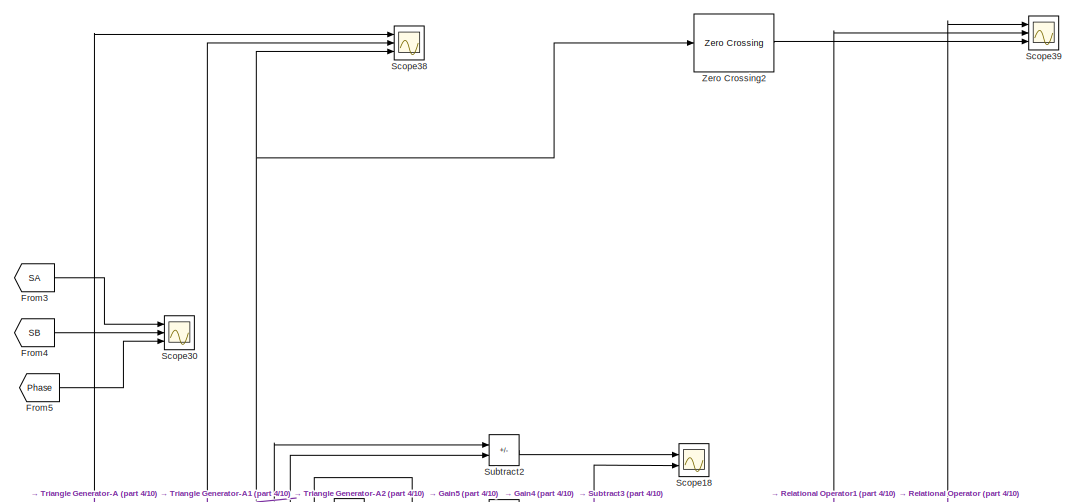
[diagram: root canvas - part 1/10, top center region]
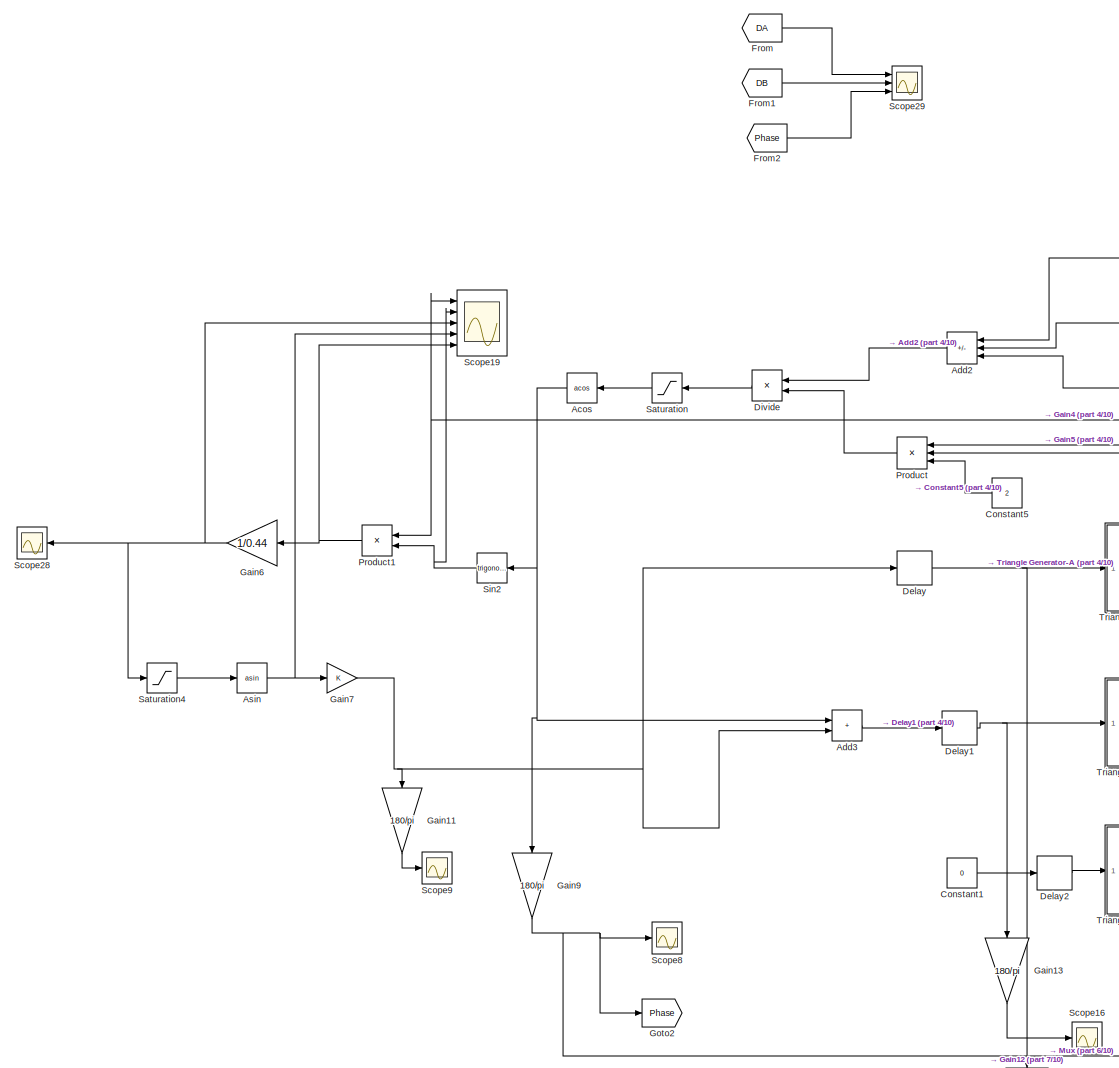
[diagram: root canvas - part 2/10, top left region]
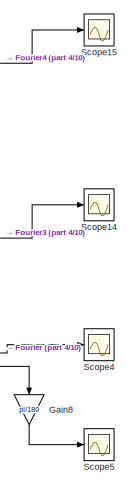
[diagram: root canvas - part 3/10, top right region]
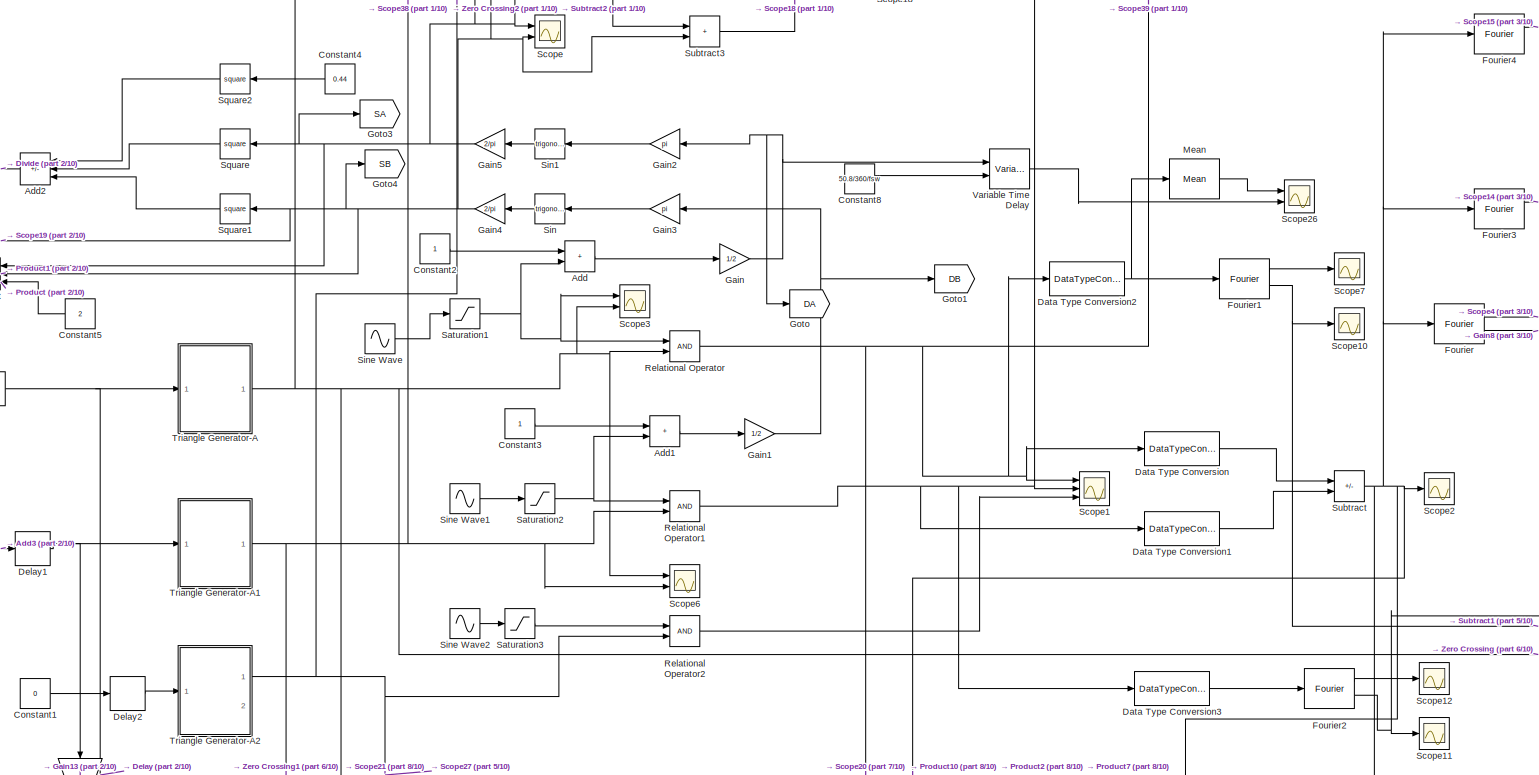
[diagram: root canvas - part 4/10, top center region]
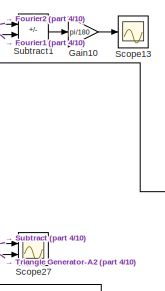
[diagram: root canvas - part 5/10, middle right region]
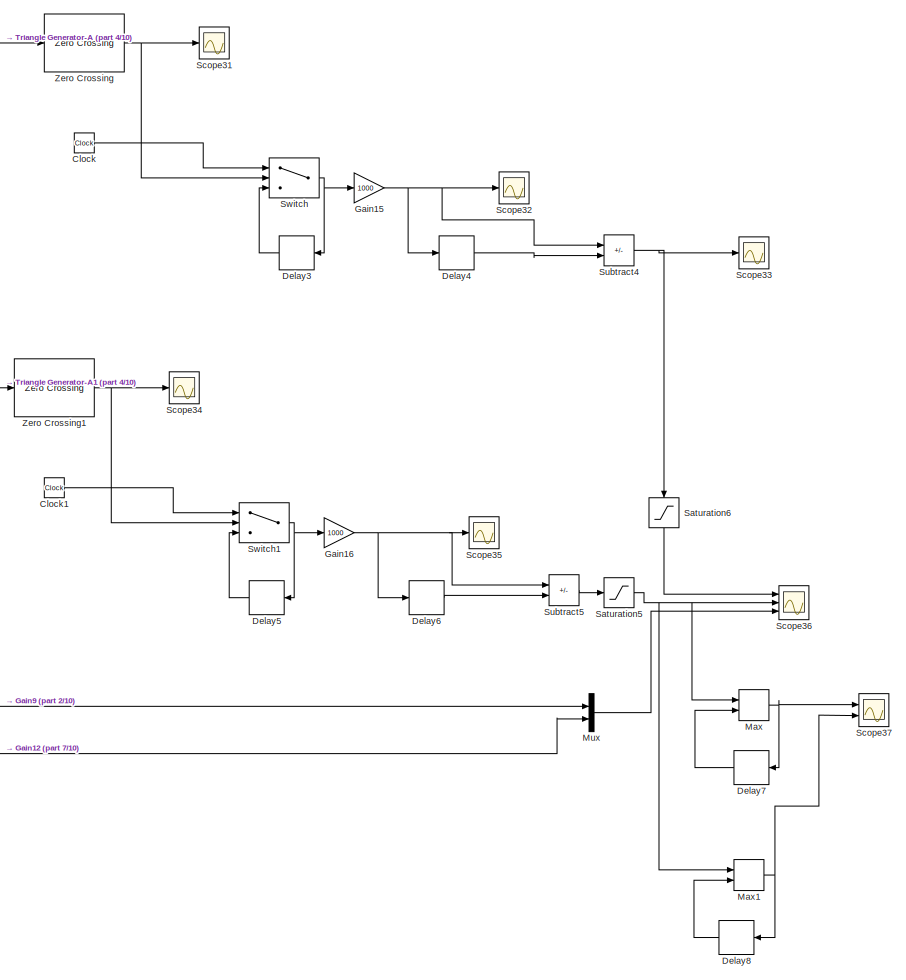
[diagram: root canvas - part 6/10, middle right region]
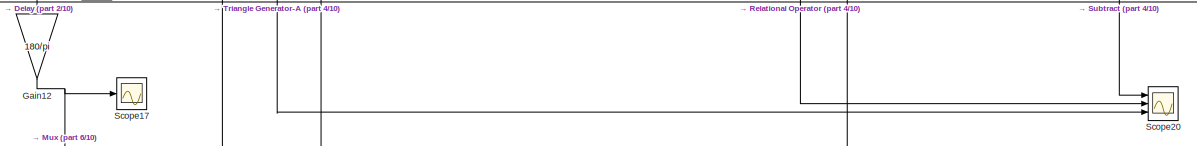
[diagram: root canvas - part 7/10, central region]
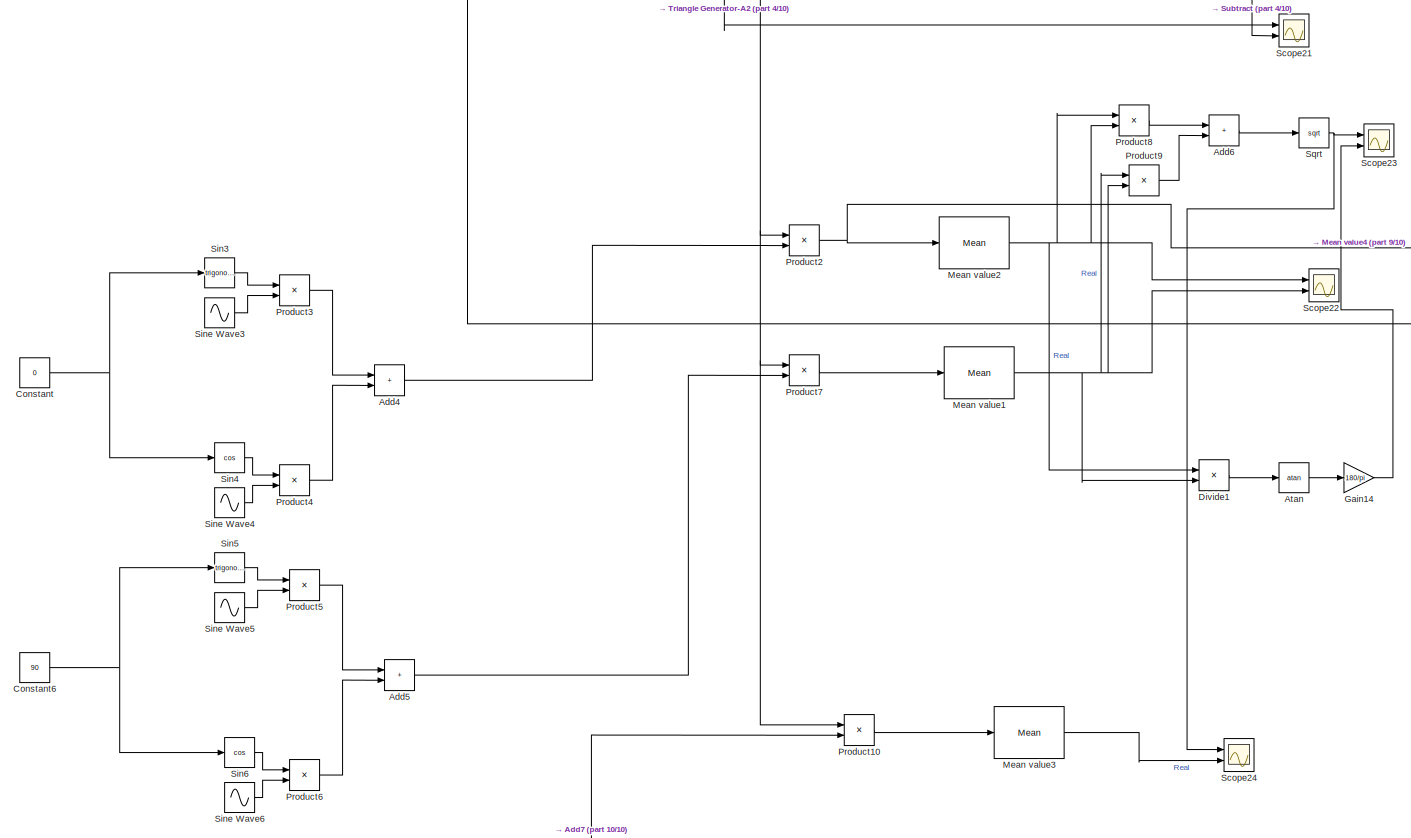
[diagram: root canvas - part 8/10, bottom center region]
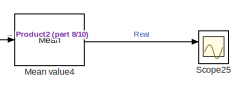
[diagram: root canvas - part 9/10, bottom right region]
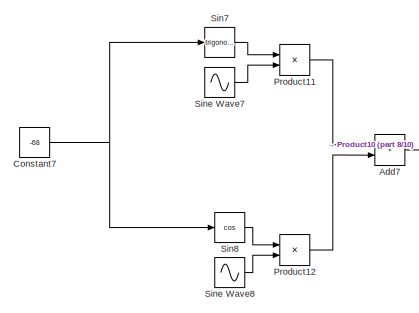
[diagram: root canvas - part 10/10, bottom left region]
MODEL slx_3d8811979608
KIND model
CONFIG AbsTol = auto
CONFIG EnableMultiTasking = off
CONFIG FixedStep = 1e-8
CONFIG InitFcn = fsw=10e3;\nma=0.8;\nffund=100;
CONFIG MaxStep = 1e-7
CONFIG MinStep = auto
CONFIG RelTol = 1e-6
CONFIG SampleTimeConstraint = Unconstrained
CONFIG SolverName = FixedStepAuto
CONFIG StartTime = 0.0
CONFIG StopTime = 0.01
BLOCK [Trigonometry] Acos
  NameLocation = top
  Operator = acos
  Ports = [1, 1]
BLOCK [Sum] Add
  IconShape = rectangular
  Ports = [2, 1]
BLOCK [Sum] Add1
  IconShape = rectangular
  Ports = [2, 1]
BLOCK [Sum] Add2
  IconShape = rectangular
  Inputs = -++
  NameLocation = top
  Ports = [3, 1]
BLOCK [Sum] Add3
  IconShape = rectangular
  Ports = [2, 1]
BLOCK [Sum] Add4
  IconShape = rectangular
  Ports = [2, 1]
BLOCK [Sum] Add5
  IconShape = rectangular
  Ports = [2, 1]
BLOCK [Sum] Add6
  IconShape = rectangular
  Ports = [2, 1]
BLOCK [Sum] Add7
  IconShape = rectangular
  Ports = [2, 1]
BLOCK [Trigonometry] Asin
  Operator = asin
  Ports = [1, 1]
BLOCK [Trigonometry] Atan
  Operator = atan
  Ports = [1, 1]
BLOCK [Clock] Clock
BLOCK [Clock] Clock1
BLOCK [Constant] Constant
  Value = 0
BLOCK [Constant] Constant1
  Value = 0
BLOCK [Constant] Constant2
BLOCK [Constant] Constant3
BLOCK [Constant] Constant4
  NameLocation = top
  Value = 0.44
BLOCK [Constant] Constant5
  NameLocation = top
  Value = 2
BLOCK [Constant] Constant6
  Value = 90
BLOCK [Constant] Constant7
  Value = -68
BLOCK [Constant] Constant8
  Value = 50.8/360/fsw
BLOCK [DataTypeConversion] Data Type Conversion
  RndMeth = Floor
  SaturateOnIntegerOverflow = off
BLOCK [DataTypeConversion] Data Type Conversion1
  RndMeth = Floor
  SaturateOnIntegerOverflow = off
BLOCK [DataTypeConversion] Data Type Conversion2
  RndMeth = Floor
  SaturateOnIntegerOverflow = off
BLOCK [DataTypeConversion] Data Type Conversion3
  RndMeth = Floor
  SaturateOnIntegerOverflow = off
BLOCK [Delay] Delay
  DelayLength = 1
  InputPortMap = u0
  Ports = [1, 1]
BLOCK [Delay] Delay1
  DelayLength = 1
  InputPortMap = u0
  Ports = [1, 1]
BLOCK [Delay] Delay2
  DelayLength = 1
  InputPortMap = u0
  Ports = [1, 1]
BLOCK [Delay] Delay3
  DelayLength = 1
  InputPortMap = u0
  NameLocation = top
  Ports = [1, 1]
BLOCK [Delay] Delay4
  DelayLength = 1
  InputPortMap = u0
  Ports = [1, 1]
BLOCK [Delay] Delay5
  DelayLength = 1
  InputPortMap = u0
  NameLocation = top
  Ports = [1, 1]
BLOCK [Delay] Delay6
  DelayLength = 1
  InputPortMap = u0
  Ports = [1, 1]
BLOCK [Delay] Delay7
  DelayLength = 1
  InputPortMap = u0
  NameLocation = top
  Ports = [1, 1]
BLOCK [Delay] Delay8
  DelayLength = 1
  InputPortMap = u0
  NameLocation = top
  Ports = [1, 1]
BLOCK [Product] Divide
  Inputs = */
  NameLocation = top
  Ports = [2, 1]
BLOCK [Product] Divide1
  Inputs = */
  Ports = [2, 1]
BLOCK [Reference] Fourier  REF=spsFourierLib/Fourier
  Ports = [1, 2]
  SourceBlock = spsFourierLib/Fourier
  SourceProductBaseCode = PS
  SourceType = Fourier
BLOCK [Reference] Fourier1  REF=spsFourierLib/Fourier
  Ports = [1, 2]
  SourceBlock = spsFourierLib/Fourier
  SourceProductBaseCode = PS
  SourceType = Fourier
BLOCK [Reference] Fourier2  REF=spsFourierLib/Fourier
  Ports = [1, 2]
  SourceBlock = spsFourierLib/Fourier
  SourceProductBaseCode = PS
  SourceType = Fourier
BLOCK [Reference] Fourier3  REF=spsFourierLib/Fourier
  Ports = [1, 2]
  SourceBlock = spsFourierLib/Fourier
  SourceProductBaseCode = PS
  SourceType = Fourier
BLOCK [Reference] Fourier4  REF=spsFourierLib/Fourier
  Ports = [1, 2]
  SourceBlock = spsFourierLib/Fourier
  SourceProductBaseCode = PS
  SourceType = Fourier
BLOCK [From] From
  GotoTag = DA
BLOCK [From] From1
  GotoTag = DB
BLOCK [From] From2
  GotoTag = Phase
BLOCK [From] From3
  GotoTag = SA
BLOCK [From] From4
  GotoTag = SB
BLOCK [From] From5
  GotoTag = Phase
BLOCK [Gain] Gain
  Gain = 1/2
BLOCK [Gain] Gain1
  Gain = 1/2
BLOCK [Gain] Gain10
  Gain = pi/180
BLOCK [Gain] Gain11
  Gain = 180/pi
  NameLocation = left
BLOCK [Gain] Gain12
  Gain = 180/pi
  NameLocation = left
BLOCK [Gain] Gain13
  Gain = 180/pi
  NameLocation = left
BLOCK [Gain] Gain14
  Gain = 180/pi
BLOCK [Gain] Gain15
  Gain = 1000
BLOCK [Gain] Gain16
  Gain = 1000
BLOCK [Gain] Gain2
  Gain = pi
  NameLocation = top
BLOCK [Gain] Gain3
  Gain = pi
  NameLocation = top
BLOCK [Gain] Gain4
  Gain = 2/pi
  NameLocation = top
BLOCK [Gain] Gain5
  Gain = 2/pi
  NameLocation = top
BLOCK [Gain] Gain6
  Gain = 1/0.44
  NameLocation = top
BLOCK [Gain] Gain7
BLOCK [Gain] Gain8
  Gain = pi/180
  NameLocation = left
BLOCK [Gain] Gain9
  Gain = 180/pi
  NameLocation = left
BLOCK [Goto] Goto
  GotoTag = DA
BLOCK [Goto] Goto1
  GotoTag = DB
BLOCK [Goto] Goto2
  GotoTag = Phase
BLOCK [Goto] Goto3
  GotoTag = SA
BLOCK [Goto] Goto4
  GotoTag = SB
BLOCK [MinMax] Max
  Function = max
  Inputs = 2
  Ports = [2, 1]
BLOCK [MinMax] Max1
  Inputs = 2
  Ports = [2, 1]
BLOCK [Reference] Mean  REF=spsMeanLib/Mean
  Ports = [1, 1]
  SourceBlock = spsMeanLib/Mean
  SourceProductBaseCode = PS
  SourceType = Mean
BLOCK [Reference] Mean value1  REF=spsMeanLib/Mean
  Ports = [1, 1]
  SourceBlock = spsMeanLib/Mean
  SourceProductBaseCode = PS
  SourceType = Mean
BLOCK [Reference] Mean value2  REF=spsMeanLib/Mean
  Ports = [1, 1]
  SourceBlock = spsMeanLib/Mean
  SourceProductBaseCode = PS
  SourceType = Mean
BLOCK [Reference] Mean value3  REF=spsMeanLib/Mean
  Ports = [1, 1]
  SourceBlock = spsMeanLib/Mean
  SourceProductBaseCode = PS
  SourceType = Mean
BLOCK [Reference] Mean value4  REF=spsMeanLib/Mean
  Ports = [1, 1]
  SourceBlock = spsMeanLib/Mean
  SourceProductBaseCode = PS
  SourceType = Mean
BLOCK [Mux] Mux
  DisplayOption = bar
  Inputs = 2
  Ports = [2, 1]
BLOCK [Product] Product
  Inputs = 3
  NameLocation = top
  Ports = [3, 1]
BLOCK [Product] Product1
  NameLocation = top
  Ports = [2, 1]
BLOCK [Product] Product10
  Ports = [2, 1]
BLOCK [Product] Product11
  Ports = [2, 1]
BLOCK [Product] Product12
  Ports = [2, 1]
BLOCK [Product] Product2
  Ports = [2, 1]
BLOCK [Product] Product3
  Ports = [2, 1]
BLOCK [Product] Product4
  Ports = [2, 1]
BLOCK [Product] Product5
  Ports = [2, 1]
BLOCK [Product] Product6
  Ports = [2, 1]
BLOCK [Product] Product7
  Ports = [2, 1]
BLOCK [Product] Product8
  Ports = [2, 1]
BLOCK [Product] Product9
  Ports = [2, 1]
BLOCK [RelationalOperator] Relational Operator
  InputSameDT = off
  OutDataTypeStr = boolean
  Ports = [2, 1]
  RndMeth = Simplest
BLOCK [RelationalOperator] Relational Operator1
  InputSameDT = off
  OutDataTypeStr = boolean
  Ports = [2, 1]
  RndMeth = Simplest
BLOCK [RelationalOperator] Relational Operator2
  InputSameDT = off
  OutDataTypeStr = boolean
  Ports = [2, 1]
  RndMeth = Simplest
BLOCK [Saturate] Saturation
  LowerLimit = -1
  NameLocation = top
  UpperLimit = 1
BLOCK [Saturate] Saturation1
  LowerLimit = -1
  UpperLimit = 1
BLOCK [Saturate] Saturation2
  LowerLimit = -1
  UpperLimit = 1
BLOCK [Saturate] Saturation3
  LowerLimit = -1
  UpperLimit = 1
BLOCK [Saturate] Saturation4
  LowerLimit = -1
  UpperLimit = 1
BLOCK [Saturate] Saturation5
  UpperLimit = 0.006
BLOCK [Saturate] Saturation6
  NameLocation = left
  UpperLimit = 0.006
BLOCK [Scope] Scope
  Floating = off
  NumInputPorts = 2
  Ports = [2]
  ScopeSpecificationString = Simulink.scopes.TimeScopeBlockCfg('CurrentConfiguration', extmgr.ConfigurationSet(extmgr.Configuration('Core','General UI',true),extmgr.Configuration('Core','Source UI',true),extmgr.Configuration('Sources','WiredSimulink',true,'DataLoggingVariableName','ScopeData2'),extmgr.Configuration('Visuals','Time Domain',true,'SerializedDisplays',{struct('MinYLimReal','0.14174','MaxYLimReal','0.69161','YLabe...<+1445ch>
BLOCK [Scope] Scope1
  Floating = off
  NumInputPorts = 3
  Ports = [3]
  ScopeSpecificationString = Simulink.scopes.TimeScopeBlockCfg('CurrentConfiguration', extmgr.ConfigurationSet(extmgr.Configuration('Core','General UI',true),extmgr.Configuration('Core','Source UI',true),extmgr.Configuration('Sources','WiredSimulink',true,'DataLoggingVariableName','ScopeData3'),extmgr.Configuration('Visuals','Time Domain',true,'SerializedDisplays',{struct('MinYLimReal','-0.125','MaxYLimReal','1.07577','YLabel...<+2812ch>
BLOCK [Scope] Scope10
  Floating = off
  NumInputPorts = 1
  Ports = [1]
  ScopeSpecificationString = Simulink.scopes.TimeScopeBlockCfg('CurrentConfiguration', extmgr.ConfigurationSet(extmgr.Configuration('Core','General UI',true),extmgr.Configuration('Core','Source UI',true),extmgr.Configuration('Sources','WiredSimulink',true,'DataLoggingVariableName','ScopeData6','DataLogging',true,'DataLoggingSaveFormat','StructureWithTime'),extmgr.Configuration('Visuals','Time Domain',true,'SerializedDisplays'...<+1513ch>
BLOCK [Scope] Scope11
  Floating = off
  NumInputPorts = 1
  Ports = [1]
  ScopeSpecificationString = Simulink.scopes.TimeScopeBlockCfg('CurrentConfiguration', extmgr.ConfigurationSet(extmgr.Configuration('Core','General UI',true),extmgr.Configuration('Core','Source UI',true),extmgr.Configuration('Sources','WiredSimulink',true,'DataLoggingVariableName','ScopeData7','DataLogging',true,'DataLoggingSaveFormat','StructureWithTime'),extmgr.Configuration('Visuals','Time Domain',true,'SerializedDisplays'...<+1521ch>
BLOCK [Scope] Scope12
  Floating = off
  NumInputPorts = 1
  Ports = [1]
  ScopeSpecificationString = Simulink.scopes.TimeScopeBlockCfg('CurrentConfiguration', extmgr.ConfigurationSet(extmgr.Configuration('Core','General UI',true),extmgr.Configuration('Core','Source UI',true),extmgr.Configuration('Sources','WiredSimulink',true,'DataLoggingVariableName','ScopeData8','DataLogging',true,'DataLoggingSaveFormat','StructureWithTime'),extmgr.Configuration('Visuals','Time Domain',true,'SerializedDisplays'...<+1503ch>
BLOCK [Scope] Scope13
  Floating = off
  NumInputPorts = 1
  Ports = [1]
  ScopeSpecificationString = Simulink.scopes.TimeScopeBlockCfg('CurrentConfiguration', extmgr.ConfigurationSet(extmgr.Configuration('Core','General UI',true),extmgr.Configuration('Core','Source UI',true),extmgr.Configuration('Sources','WiredSimulink',true,'DataLoggingVariableName','ScopeData9','DataLogging',true,'DataLoggingSaveFormat','StructureWithTime'),extmgr.Configuration('Visuals','Time Domain',true,'SerializedDisplays'...<+1503ch>
BLOCK [Scope] Scope14
  Floating = off
  NumInputPorts = 1
  Ports = [1]
  ScopeSpecificationString = Simulink.scopes.TimeScopeBlockCfg('CurrentConfiguration', extmgr.ConfigurationSet(extmgr.Configuration('Core','General UI',true),extmgr.Configuration('Core','Source UI',true),extmgr.Configuration('Sources','WiredSimulink',true,'DataLoggingVariableName','ScopeData10','DataLogging',true,'DataLoggingSaveFormat','StructureWithTime'),extmgr.Configuration('Visuals','Time Domain',true,'SerializedDisplays...<+1508ch>
BLOCK [Scope] Scope15
  Floating = off
  NumInputPorts = 1
  Ports = [1]
  ScopeSpecificationString = Simulink.scopes.TimeScopeBlockCfg('CurrentConfiguration', extmgr.ConfigurationSet(extmgr.Configuration('Core','General UI',true),extmgr.Configuration('Core','Source UI',true),extmgr.Configuration('Sources','WiredSimulink',true,'DataLoggingVariableName','ScopeData11','DataLogging',true,'DataLoggingSaveFormat','StructureWithTime'),extmgr.Configuration('Visuals','Time Domain',true,'SerializedDisplays...<+1508ch>
BLOCK [Scope] Scope16
  Floating = off
  NumInputPorts = 1
  Ports = [1]
  ScopeSpecificationString = Simulink.scopes.TimeScopeBlockCfg('CurrentConfiguration', extmgr.ConfigurationSet(extmgr.Configuration('Core','General UI',true),extmgr.Configuration('Core','Source UI',true),extmgr.Configuration('Sources','WiredSimulink',true,'DataLoggingVariableName','ScopeData12'),extmgr.Configuration('Visuals','Time Domain',true,'SerializedDisplays',{struct('MinYLimReal','-19.4586','MaxYLimReal','175.12737','Y...<+1449ch>
BLOCK [Scope] Scope17
  Floating = off
  NumInputPorts = 1
  Ports = [1]
  ScopeSpecificationString = Simulink.scopes.TimeScopeBlockCfg('CurrentConfiguration', extmgr.ConfigurationSet(extmgr.Configuration('Core','General UI',true),extmgr.Configuration('Core','Source UI',true),extmgr.Configuration('Sources','WiredSimulink',true,'DataLoggingVariableName','ScopeData13'),extmgr.Configuration('Visuals','Time Domain',true,'SerializedDisplays',{struct('MinYLimReal','-11.24999','MaxYLimReal','101.24991','...<+1453ch>
BLOCK [Scope] Scope18
  Floating = off
  NumInputPorts = 2
  Ports = [2]
  ScopeSpecificationString = Simulink.scopes.TimeScopeBlockCfg('CurrentConfiguration', extmgr.ConfigurationSet(extmgr.Configuration('Core','General UI',true),extmgr.Configuration('Core','Source UI',true),extmgr.Configuration('Sources','WiredSimulink',true,'DataLoggingVariableName','ScopeData14'),extmgr.Configuration('Visuals','Time Domain',true,'SerializedDisplays',{struct('MinYLimReal','-0.60162','MaxYLimReal','1.17784','YLa...<+1454ch>
BLOCK [Scope] Scope19
  Floating = off
  NumInputPorts = 5
  Ports = [5]
  ScopeSpecificationString = Simulink.scopes.TimeScopeBlockCfg('CurrentConfiguration', extmgr.ConfigurationSet(extmgr.Configuration('Core','General UI',true),extmgr.Configuration('Core','Source UI',true),extmgr.Configuration('Sources','WiredSimulink',true,'DataLoggingVariableName','ScopeData1'),extmgr.Configuration('Visuals','Time Domain',true,'SerializedDisplays',{struct('MinYLimReal','0.14174','MaxYLimReal','0.69161','YLabe...<+6243ch>
BLOCK [Scope] Scope2
  Floating = off
  NumInputPorts = 1
  Ports = [1]
  ScopeSpecificationString = Simulink.scopes.TimeScopeBlockCfg('CurrentConfiguration', extmgr.ConfigurationSet(extmgr.Configuration('Core','General UI',true),extmgr.Configuration('Core','Source UI',true),extmgr.Configuration('Sources','WiredSimulink',true,'DataLoggingVariableName','VAB','DataLogging',true,'DataLoggingSaveFormat','StructureWithTime'),extmgr.Configuration('Visuals','Time Domain',true,'SerializedDisplays',{struc...<+1476ch>
BLOCK [Scope] Scope20
  Floating = off
  NumInputPorts = 3
  Ports = [3]
  ScopeSpecificationString = Simulink.scopes.TimeScopeBlockCfg('CurrentConfiguration', extmgr.ConfigurationSet(extmgr.Configuration('Core','General UI',true),extmgr.Configuration('Core','Source UI',true),extmgr.Configuration('Sources','WiredSimulink',true,'DataLoggingVariableName','ScopeData2','DataLogging',true,'DataLoggingSaveFormat','StructureWithTime'),extmgr.Configuration('Visuals','Time Domain',true,'SerializedDisplays'...<+2863ch>
BLOCK [Scope] Scope21
  Floating = off
  NumInputPorts = 2
  Ports = [2]
  ScopeSpecificationString = Simulink.scopes.TimeScopeBlockCfg('CurrentConfiguration', extmgr.ConfigurationSet(extmgr.Configuration('Core','General UI',true),extmgr.Configuration('Core','Source UI',true),extmgr.Configuration('Sources','WiredSimulink',true,'DataLoggingVariableName','ScopeData3'),extmgr.Configuration('Visuals','Time Domain',true,'SerializedDisplays',{struct('MinYLimReal','-1.25','MaxYLimReal','1.25','YLabelReal...<+1446ch>
BLOCK [Scope] Scope22
  Floating = off
  NumInputPorts = 2
  Ports = [2]
  ScopeSpecificationString = Simulink.scopes.TimeScopeBlockCfg('CurrentConfiguration', extmgr.ConfigurationSet(extmgr.Configuration('Core','General UI',true),extmgr.Configuration('Core','Source UI',true),extmgr.Configuration('Sources','WiredSimulink',true,'DataLoggingVariableName','ScopeData4'),extmgr.Configuration('Visuals','Time Domain',true,'SerializedDisplays',{struct('MinYLimReal','0.18527','MaxYLimReal','0.24121','YLabe...<+2022ch>
BLOCK [Scope] Scope23
  Floating = off
  NumInputPorts = 2
  Ports = [2]
  ScopeSpecificationString = Simulink.scopes.TimeScopeBlockCfg('CurrentConfiguration', extmgr.ConfigurationSet(extmgr.Configuration('Core','General UI',true),extmgr.Configuration('Core','Source UI',true),extmgr.Configuration('Sources','WiredSimulink',true,'DataLoggingVariableName','ScopeData5'),extmgr.Configuration('Visuals','Time Domain',true,'SerializedDisplays',{struct('MinYLimReal','-0.03159','MaxYLimReal','0.28432','YLab...<+2080ch>
BLOCK [Scope] Scope24
  Floating = off
  NumInputPorts = 2
  Ports = [2]
  ScopeSpecificationString = Simulink.scopes.TimeScopeBlockCfg('CurrentConfiguration', extmgr.ConfigurationSet(extmgr.Configuration('Core','General UI',true),extmgr.Configuration('Core','Source UI',true),extmgr.Configuration('Sources','WiredSimulink',true,'DataLoggingVariableName','ScopeData6'),extmgr.Configuration('Visuals','Time Domain',true,'SerializedDisplays',{struct('MinYLimReal','-0.14712','MaxYLimReal','0.29376','YLab...<+1458ch>
BLOCK [Scope] Scope25
  Floating = off
  NumInputPorts = 2
  Ports = [2]
  ScopeSpecificationString = Simulink.scopes.TimeScopeBlockCfg('CurrentConfiguration', extmgr.ConfigurationSet(extmgr.Configuration('Core','General UI',true),extmgr.Configuration('Core','Source UI',true),extmgr.Configuration('Sources','WiredSimulink',true,'DataLoggingVariableName','ScopeData7'),extmgr.Configuration('Visuals','Time Domain',true,'SerializedDisplays',{struct('MinYLimReal','-0.26467','MaxYLimReal','-0.15684','YLa...<+2029ch>
BLOCK [Scope] Scope26
  Floating = off
  NumInputPorts = 2
  Ports = [2]
  ScopeSpecificationString = Simulink.scopes.TimeScopeBlockCfg('CurrentConfiguration', extmgr.ConfigurationSet(extmgr.Configuration('Core','General UI',true),extmgr.Configuration('Core','Source UI',true),extmgr.Configuration('Sources','WiredSimulink',true,'DataLoggingVariableName','ScopeData1'),extmgr.Configuration('Visuals','Time Domain',true,'SerializedDisplays',{struct('MinYLimReal','-0.1144','MaxYLimReal','1.02963','YLabe...<+1454ch>
BLOCK [Scope] Scope27
  Floating = off
  NumInputPorts = 2
  Ports = [2]
  ScopeSpecificationString = Simulink.scopes.TimeScopeBlockCfg('CurrentConfiguration', extmgr.ConfigurationSet(extmgr.Configuration('Core','General UI',true),extmgr.Configuration('Core','Source UI',true),extmgr.Configuration('Sources','WiredSimulink',true,'DataLoggingVariableName','ScopeData1'),extmgr.Configuration('Visuals','Time Domain',true,'SerializedDisplays',{struct('MinYLimReal','-1.25','MaxYLimReal','1.25','YLabelReal...<+1446ch>
BLOCK [Scope] Scope28
  Floating = off
  NameLocation = top
  NumInputPorts = 1
  Ports = [1]
  ScopeSpecificationString = Simulink.scopes.TimeScopeBlockCfg('CurrentConfiguration', extmgr.ConfigurationSet(extmgr.Configuration('Core','General UI',true),extmgr.Configuration('Core','Source UI',true),extmgr.Configuration('Sources','WiredSimulink',true,'DataLoggingVariableName','ScopeData1'),extmgr.Configuration('Visuals','Time Domain',true,'SerializedDisplays',{struct('MinYLimReal','0.20137','MaxYLimReal','1.08874','YLabe...<+1406ch>
BLOCK [Scope] Scope29
  Floating = off
  NumInputPorts = 3
  Ports = [3]
  ScopeSpecificationString = Simulink.scopes.TimeScopeBlockCfg('CurrentConfiguration', extmgr.ConfigurationSet(extmgr.Configuration('Core','General UI',true),extmgr.Configuration('Core','Source UI',true),extmgr.Configuration('Sources','WiredSimulink',true,'DataLoggingVariableName','ScopeData2'),extmgr.Configuration('Visuals','Time Domain',true,'SerializedDisplays',{struct('MinYLimReal','0.0625','MaxYLimReal','0.9375','YLabelR...<+2780ch>
BLOCK [Scope] Scope3
  Floating = off
  NumInputPorts = 2
  Ports = [2]
  ScopeSpecificationString = Simulink.scopes.TimeScopeBlockCfg('CurrentConfiguration', extmgr.ConfigurationSet(extmgr.Configuration('Core','General UI',true),extmgr.Configuration('Core','Source UI',true),extmgr.Configuration('Sources','WiredSimulink',true,'DataLoggingVariableName','ScopeData5'),extmgr.Configuration('Visuals','Time Domain',true,'SerializedDisplays',{struct('MinYLimReal','-1.25','MaxYLimReal','1.24996','YLabelR...<+1457ch>
BLOCK [Scope] Scope30
  Floating = off
  NumInputPorts = 3
  Ports = [3]
  ScopeSpecificationString = Simulink.scopes.TimeScopeBlockCfg('CurrentConfiguration', extmgr.ConfigurationSet(extmgr.Configuration('Core','General UI',true),extmgr.Configuration('Core','Source UI',true),extmgr.Configuration('Sources','WiredSimulink',true,'DataLoggingVariableName','ScopeData3'),extmgr.Configuration('Visuals','Time Domain',true,'SerializedDisplays',{struct('MinYLimReal','0.14174','MaxYLimReal','0.69161','YLabe...<+2788ch>
BLOCK [Scope] Scope31
  Floating = off
  NumInputPorts = 1
  Ports = [1]
  ScopeSpecificationString = Simulink.scopes.TimeScopeBlockCfg('CurrentConfiguration', extmgr.ConfigurationSet(extmgr.Configuration('Core','General UI',true),extmgr.Configuration('Core','Source UI',true),extmgr.Configuration('Sources','WiredSimulink',true,'DataLoggingVariableName','ScopeData4'),extmgr.Configuration('Visuals','Time Domain',true,'SerializedDisplays',{struct('MinYLimReal','-0.0213','MaxYLimReal','1.02071','YLabe...<+1441ch>
BLOCK [Scope] Scope32
  Floating = off
  NumInputPorts = 1
  Ports = [1]
  ScopeSpecificationString = Simulink.scopes.TimeScopeBlockCfg('CurrentConfiguration', extmgr.ConfigurationSet(extmgr.Configuration('Core','General UI',true),extmgr.Configuration('Core','Source UI',true),extmgr.Configuration('Sources','WiredSimulink',true,'DataLoggingVariableName','ScopeData5'),extmgr.Configuration('Visuals','Time Domain',true,'SerializedDisplays',{struct('MinYLimReal','-1.1149','MaxYLimReal','10.0341','YLabe...<+1382ch>
BLOCK [Scope] Scope33
  Floating = off
  NumInputPorts = 1
  Ports = [1]
  ScopeSpecificationString = Simulink.scopes.TimeScopeBlockCfg('CurrentConfiguration', extmgr.ConfigurationSet(extmgr.Configuration('Core','General UI',true),extmgr.Configuration('Core','Source UI',true),extmgr.Configuration('Sources','WiredSimulink',true,'DataLoggingVariableName','ScopeData6'),extmgr.Configuration('Visuals','Time Domain',true,'SerializedDisplays',{struct('MinYLimReal','-0.01267','MaxYLimReal','0.11407','YLab...<+1414ch>
BLOCK [Scope] Scope34
  Floating = off
  NumInputPorts = 1
  Ports = [1]
  ScopeSpecificationString = Simulink.scopes.TimeScopeBlockCfg('CurrentConfiguration', extmgr.ConfigurationSet(extmgr.Configuration('Core','General UI',true),extmgr.Configuration('Core','Source UI',true),extmgr.Configuration('Sources','WiredSimulink',true,'DataLoggingVariableName','ScopeData7'),extmgr.Configuration('Visuals','Time Domain',true,'SerializedDisplays',{struct('MinYLimReal','-0.0213','MaxYLimReal','1.02071','YLabe...<+1441ch>
BLOCK [Scope] Scope35
  Floating = off
  NumInputPorts = 1
  Ports = [1]
  ScopeSpecificationString = Simulink.scopes.TimeScopeBlockCfg('CurrentConfiguration', extmgr.ConfigurationSet(extmgr.Configuration('Core','General UI',true),extmgr.Configuration('Core','Source UI',true),extmgr.Configuration('Sources','WiredSimulink',true,'DataLoggingVariableName','ScopeData8'),extmgr.Configuration('Visuals','Time Domain',true,'SerializedDisplays',{struct('MinYLimReal','-1.1149','MaxYLimReal','10.0341','YLabe...<+1382ch>
BLOCK [Scope] Scope36
  Floating = off
  NumInputPorts = 3
  Ports = [3]
  ScopeSpecificationString = Simulink.scopes.TimeScopeBlockCfg('CurrentConfiguration', extmgr.ConfigurationSet(extmgr.Configuration('Core','General UI',true),extmgr.Configuration('Core','Source UI',true),extmgr.Configuration('Sources','WiredSimulink',true,'DataLoggingVariableName','ScopeData9'),extmgr.Configuration('Visuals','Time Domain',true,'SerializedDisplays',{struct('MinYLimReal','-0.00075','MaxYLimReal','0.00675','YLab...<+2731ch>
BLOCK [Scope] Scope37
  Floating = off
  NumInputPorts = 2
  Ports = [2]
  ScopeSpecificationString = Simulink.scopes.TimeScopeBlockCfg('CurrentConfiguration', extmgr.ConfigurationSet(extmgr.Configuration('Core','General UI',true),extmgr.Configuration('Core','Source UI',true),extmgr.Configuration('Sources','WiredSimulink',true,'DataLoggingVariableName','ScopeData10'),extmgr.Configuration('Visuals','Time Domain',true,'SerializedDisplays',{struct('MinYLimReal','0.0431','MaxYLimReal','0.0531','YLabel...<+1379ch>
BLOCK [Scope] Scope38
  Floating = off
  NumInputPorts = 3
  Ports = [3]
  ScopeSpecificationString = Simulink.scopes.TimeScopeBlockCfg('CurrentConfiguration', extmgr.ConfigurationSet(extmgr.Configuration('Core','General UI',true),extmgr.Configuration('Core','Source UI',true),extmgr.Configuration('Sources','WiredSimulink',true,'DataLoggingVariableName','ScopeData11'),extmgr.Configuration('Visuals','Time Domain',true,'SerializedDisplays',{struct('MinYLimReal','-1.25','MaxYLimReal','1.25','YLabelRea...<+1483ch>
BLOCK [Scope] Scope39
  Floating = off
  NumInputPorts = 3
  Ports = [3]
  ScopeSpecificationString = Simulink.scopes.TimeScopeBlockCfg('CurrentConfiguration', extmgr.ConfigurationSet(extmgr.Configuration('Core','General UI',true),extmgr.Configuration('Core','Source UI',true),extmgr.Configuration('Sources','WiredSimulink',true,'DataLoggingVariableName','ScopeData12'),extmgr.Configuration('Visuals','Time Domain',true,'SerializedDisplays',{struct('MinYLimReal','-0.125','MaxYLimReal','1.04152','YLabe...<+2811ch>
BLOCK [Scope] Scope4
  Floating = off
  NumInputPorts = 1
  Ports = [1]
  ScopeSpecificationString = Simulink.scopes.TimeScopeBlockCfg('CurrentConfiguration', extmgr.ConfigurationSet(extmgr.Configuration('Core','General UI',true),extmgr.Configuration('Core','Source UI',true),extmgr.Configuration('Sources','WiredSimulink',true,'DataLoggingVariableName','VAB1','DataLogging',true,'DataLoggingSaveFormat','StructureWithTime'),extmgr.Configuration('Visuals','Time Domain',true,'SerializedDisplays',{stru...<+1498ch>
BLOCK [Scope] Scope5
  Floating = off
  NumInputPorts = 1
  Ports = [1]
  ScopeSpecificationString = Simulink.scopes.TimeScopeBlockCfg('CurrentConfiguration', extmgr.ConfigurationSet(extmgr.Configuration('Core','General UI',true),extmgr.Configuration('Core','Source UI',true),extmgr.Configuration('Sources','WiredSimulink',true,'DataLoggingVariableName','ScopeData1','DataLogging',true,'DataLoggingSaveFormat','StructureWithTime'),extmgr.Configuration('Visuals','Time Domain',true,'SerializedDisplays'...<+1501ch>
BLOCK [Scope] Scope6
  Floating = off
  NumInputPorts = 2
  Ports = [2]
  ScopeSpecificationString = Simulink.scopes.TimeScopeBlockCfg('CurrentConfiguration', extmgr.ConfigurationSet(extmgr.Configuration('Core','General UI',true),extmgr.Configuration('Core','Source UI',true),extmgr.Configuration('Sources','WiredSimulink',true,'DataLoggingVariableName','ScopeData4'),extmgr.Configuration('Visuals','Time Domain',true,'SerializedDisplays',{struct('MinYLimReal','-1.06456','MaxYLimReal','1.22254','YLab...<+1474ch>
BLOCK [Scope] Scope7
  Floating = off
  NumInputPorts = 1
  Ports = [1]
  ScopeSpecificationString = Simulink.scopes.TimeScopeBlockCfg('CurrentConfiguration', extmgr.ConfigurationSet(extmgr.Configuration('Core','General UI',true),extmgr.Configuration('Core','Source UI',true),extmgr.Configuration('Sources','WiredSimulink',true,'DataLoggingVariableName','ScopeData5','DataLogging',true,'DataLoggingSaveFormat','StructureWithTime'),extmgr.Configuration('Visuals','Time Domain',true,'SerializedDisplays'...<+1505ch>
BLOCK [Scope] Scope8
  Floating = off
  NumInputPorts = 1
  Ports = [1]
  ScopeSpecificationString = Simulink.scopes.TimeScopeBlockCfg('CurrentConfiguration', extmgr.ConfigurationSet(extmgr.Configuration('Core','General UI',true),extmgr.Configuration('Core','Source UI',true),extmgr.Configuration('Sources','WiredSimulink',true,'DataLoggingVariableName','ScopeData2'),extmgr.Configuration('Visuals','Time Domain',true,'SerializedDisplays',{struct('MinYLimReal','25.49348','MaxYLimReal','104.14144','YL...<+1450ch>
BLOCK [Scope] Scope9
  Floating = off
  NumInputPorts = 1
  Ports = [1]
  ScopeSpecificationString = Simulink.scopes.TimeScopeBlockCfg('CurrentConfiguration', extmgr.ConfigurationSet(extmgr.Configuration('Core','General UI',true),extmgr.Configuration('Core','Source UI',true),extmgr.Configuration('Sources','WiredSimulink',true,'DataLoggingVariableName','ScopeData3'),extmgr.Configuration('Visuals','Time Domain',true,'SerializedDisplays',{struct('MinYLimReal','7.7224','MaxYLimReal','99.14129','YLabe...<+1436ch>
BLOCK [Trigonometry] Sin
  NameLocation = top
  Ports = [1, 1]
BLOCK [Trigonometry] Sin1
  NameLocation = top
  Ports = [1, 1]
BLOCK [Trigonometry] Sin2
  NameLocation = top
  Ports = [1, 1]
BLOCK [Trigonometry] Sin3
  Ports = [1, 1]
BLOCK [Trigonometry] Sin4
  Operator = cos
  Ports = [1, 1]
BLOCK [Trigonometry] Sin5
  Ports = [1, 1]
BLOCK [Trigonometry] Sin6
  Operator = cos
  Ports = [1, 1]
BLOCK [Trigonometry] Sin7
  Ports = [1, 1]
BLOCK [Trigonometry] Sin8
  Operator = cos
  Ports = [1, 1]
BLOCK [Sin] Sine Wave
  Amplitude = ma
  Frequency = 2*pi*ffund
  Ports = [0, 1]
  SampleTime = 0
BLOCK [Sin] Sine Wave1
  Amplitude = ma
  Frequency = 2*pi*ffund
  Phase = 2*pi/3
  Ports = [0, 1]
  SampleTime = 0
BLOCK [Sin] Sine Wave2
  Amplitude = ma
  Frequency = 2*pi*ffund
  Phase = -2*pi/3
  Ports = [0, 1]
  SampleTime = 0
BLOCK [Sin] Sine Wave3
  Frequency = 2*pi*fsw
  Ports = [0, 1]
  SampleTime = 0
BLOCK [Sin] Sine Wave4
  Frequency = 2*pi*fsw
  Phase = -pi/2
  Ports = [0, 1]
  SampleTime = 0
BLOCK [Sin] Sine Wave5
  Frequency = 2*pi*fsw
  Ports = [0, 1]
  SampleTime = 0
BLOCK [Sin] Sine Wave6
  Frequency = 2*pi*fsw
  Phase = -pi/2
  Ports = [0, 1]
  SampleTime = 0
BLOCK [Sin] Sine Wave7
  Frequency = 2*pi*fsw
  Ports = [0, 1]
  SampleTime = 0
BLOCK [Sin] Sine Wave8
  Frequency = 2*pi*fsw
  Phase = -pi/2
  Ports = [0, 1]
  SampleTime = 0
BLOCK [Sqrt] Sqrt
BLOCK [Math] Square
  NameLocation = top
  Operator = square
  Ports = [1, 1]
BLOCK [Math] Square1
  NameLocation = top
  Operator = square
  Ports = [1, 1]
BLOCK [Math] Square2
  NameLocation = top
  Operator = square
  Ports = [1, 1]
BLOCK [Sum] Subtract
  IconShape = rectangular
  Inputs = +-
  Ports = [2, 1]
BLOCK [Sum] Subtract1
  IconShape = rectangular
  Inputs = +-
  Ports = [2, 1]
BLOCK [Sum] Subtract2
  IconShape = rectangular
  Inputs = +-
  Ports = [2, 1]
BLOCK [Sum] Subtract3
  IconShape = rectangular
  Ports = [2, 1]
BLOCK [Sum] Subtract4
  IconShape = rectangular
  Inputs = +-
  Ports = [2, 1]
BLOCK [Sum] Subtract5
  IconShape = rectangular
  Inputs = +-
  Ports = [2, 1]
BLOCK [Switch] Switch
  Criteria = u2 > Threshold
  InputSameDT = off
  SaturateOnIntegerOverflow = off
BLOCK [Switch] Switch1
  Criteria = u2 > Threshold
  InputSameDT = off
  SaturateOnIntegerOverflow = off
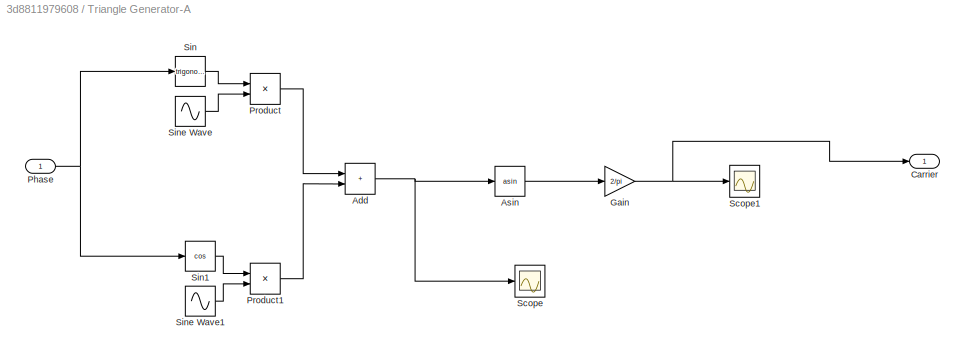
BLOCK [SubSystem] Triangle Generator-A
  Ports = [1, 1]
  RequestExecContextInheritance = off
BLOCK [Sum] Triangle Generator-A/Add
  IconShape = rectangular
  Ports = [2, 1]
BLOCK [Trigonometry] Triangle Generator-A/Asin
  Operator = asin
  Ports = [1, 1]
BLOCK [Outport] Triangle Generator-A/Carrier
BLOCK [Gain] Triangle Generator-A/Gain
  Gain = 2/pi
BLOCK [Inport] Triangle Generator-A/Phase
BLOCK [Product] Triangle Generator-A/Product
  Ports = [2, 1]
BLOCK [Product] Triangle Generator-A/Product1
  Ports = [2, 1]
BLOCK [Scope] Triangle Generator-A/Scope
  Floating = off
  NumInputPorts = 1
  Ports = [1]
  ScopeSpecificationString = Simulink.scopes.TimeScopeBlockCfg('CurrentConfiguration', extmgr.ConfigurationSet(extmgr.Configuration('Core','General UI',true),extmgr.Configuration('Core','Source UI',true),extmgr.Configuration('Sources','WiredSimulink',true),extmgr.Configuration('Visuals','Time Domain',true,'SerializedDisplays',{struct('MinYLimReal','-1.25','MaxYLimReal','1.08265','YLabelReal','','MinYLimMag','0.00000','MaxYLim...<+1360ch>
BLOCK [Scope] Triangle Generator-A/Scope1
  Floating = off
  NumInputPorts = 1
  Ports = [1]
  ScopeSpecificationString = Simulink.scopes.TimeScopeBlockCfg('CurrentConfiguration', extmgr.ConfigurationSet(extmgr.Configuration('Core','General UI',true),extmgr.Configuration('Core','Source UI',true),extmgr.Configuration('Sources','WiredSimulink',true,'DataLoggingVariableName','ScopeData1'),extmgr.Configuration('Visuals','Time Domain',true,'SerializedDisplays',{struct('MinYLimReal','-0.96344','MaxYLimReal','1.21757','YLab...<+1436ch>
BLOCK [Trigonometry] Triangle Generator-A/Sin
  Ports = [1, 1]
BLOCK [Trigonometry] Triangle Generator-A/Sin1
  Operator = cos
  Ports = [1, 1]
BLOCK [Sin] Triangle Generator-A/Sine Wave
  Frequency = 2*pi*fsw
  Ports = [0, 1]
  SampleTime = 0
BLOCK [Sin] Triangle Generator-A/Sine Wave1
  Frequency = 2*pi*fsw
  Phase = -pi/2
  Ports = [0, 1]
  SampleTime = 0
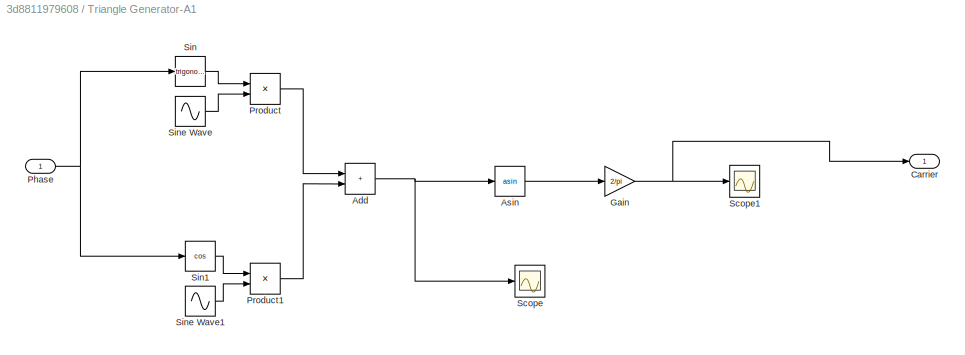
BLOCK [SubSystem] Triangle Generator-A1
  Ports = [1, 1]
  RequestExecContextInheritance = off
BLOCK [Sum] Triangle Generator-A1/Add
  IconShape = rectangular
  Ports = [2, 1]
BLOCK [Trigonometry] Triangle Generator-A1/Asin
  Operator = asin
  Ports = [1, 1]
BLOCK [Outport] Triangle Generator-A1/Carrier
BLOCK [Gain] Triangle Generator-A1/Gain
  Gain = 2/pi
BLOCK [Inport] Triangle Generator-A1/Phase
BLOCK [Product] Triangle Generator-A1/Product
  Ports = [2, 1]
BLOCK [Product] Triangle Generator-A1/Product1
  Ports = [2, 1]
BLOCK [Scope] Triangle Generator-A1/Scope
  Floating = off
  NumInputPorts = 1
  Ports = [1]
  ScopeSpecificationString = Simulink.scopes.TimeScopeBlockCfg('CurrentConfiguration', extmgr.ConfigurationSet(extmgr.Configuration('Core','General UI',true),extmgr.Configuration('Core','Source UI',true),extmgr.Configuration('Sources','WiredSimulink',true),extmgr.Configuration('Visuals','Time Domain',true,'SerializedDisplays',{struct('MinYLimReal','-1.76777','MaxYLimReal','1.76777','YLabelReal','','MinYLimMag','0.00000','MaxY...<+1372ch>
BLOCK [Scope] Triangle Generator-A1/Scope1
  Floating = off
  NumInputPorts = 1
  Ports = [1]
  ScopeSpecificationString = Simulink.scopes.TimeScopeBlockCfg('CurrentConfiguration', extmgr.ConfigurationSet(extmgr.Configuration('Core','General UI',true),extmgr.Configuration('Core','Source UI',true),extmgr.Configuration('Sources','WiredSimulink',true,'DataLoggingVariableName','ScopeData1'),extmgr.Configuration('Visuals','Time Domain',true,'SerializedDisplays',{struct('MinYLimReal','-1.9635','MaxYLimReal','1.9635','YLabel...<+1406ch>
BLOCK [Trigonometry] Triangle Generator-A1/Sin
  Ports = [1, 1]
BLOCK [Trigonometry] Triangle Generator-A1/Sin1
  Operator = cos
  Ports = [1, 1]
BLOCK [Sin] Triangle Generator-A1/Sine Wave
  Frequency = 2*pi*fsw
  Ports = [0, 1]
  SampleTime = 0
BLOCK [Sin] Triangle Generator-A1/Sine Wave1
  Frequency = 2*pi*fsw
  Phase = -pi/2
  Ports = [0, 1]
  SampleTime = 0
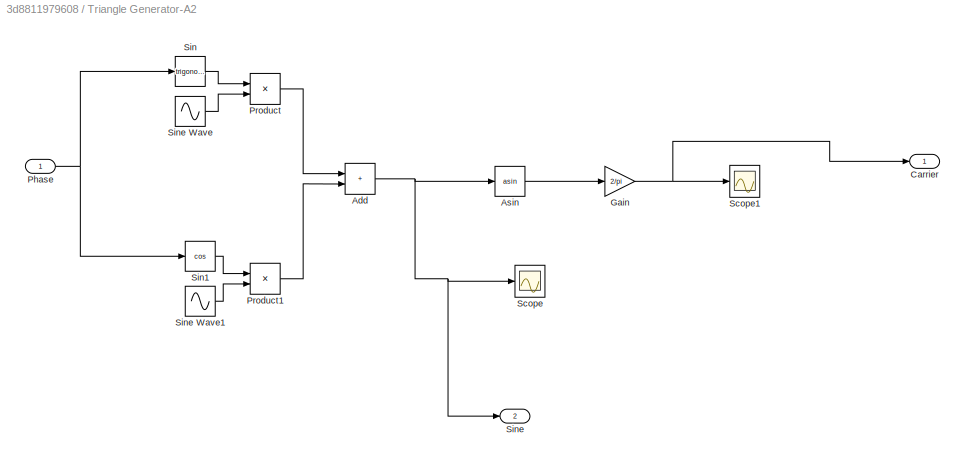
BLOCK [SubSystem] Triangle Generator-A2
  Ports = [1, 2]
  RequestExecContextInheritance = off
BLOCK [Sum] Triangle Generator-A2/Add
  IconShape = rectangular
  Ports = [2, 1]
BLOCK [Trigonometry] Triangle Generator-A2/Asin
  Operator = asin
  Ports = [1, 1]
BLOCK [Outport] Triangle Generator-A2/Carrier
BLOCK [Gain] Triangle Generator-A2/Gain
  Gain = 2/pi
BLOCK [Inport] Triangle Generator-A2/Phase
BLOCK [Product] Triangle Generator-A2/Product
  Ports = [2, 1]
BLOCK [Product] Triangle Generator-A2/Product1
  Ports = [2, 1]
BLOCK [Scope] Triangle Generator-A2/Scope
  Floating = off
  NumInputPorts = 1
  Ports = [1]
  ScopeSpecificationString = Simulink.scopes.TimeScopeBlockCfg('CurrentConfiguration', extmgr.ConfigurationSet(extmgr.Configuration('Core','General UI',true),extmgr.Configuration('Core','Source UI',true),extmgr.Configuration('Sources','WiredSimulink',true),extmgr.Configuration('Visuals','Time Domain',true,'SerializedDisplays',{struct('MinYLimReal','-1.25','MaxYLimReal','1.1168','YLabelReal','','MinYLimMag','0.00000','MaxYLimM...<+1358ch>
BLOCK [Scope] Triangle Generator-A2/Scope1
  Floating = off
  NumInputPorts = 1
  Ports = [1]
  ScopeSpecificationString = Simulink.scopes.TimeScopeBlockCfg('CurrentConfiguration', extmgr.ConfigurationSet(extmgr.Configuration('Core','General UI',true),extmgr.Configuration('Core','Source UI',true),extmgr.Configuration('Sources','WiredSimulink',true,'DataLoggingVariableName','ScopeData1'),extmgr.Configuration('Visuals','Time Domain',true,'SerializedDisplays',{struct('MinYLimReal','-1.43882','MaxYLimReal','1.70924','YLab...<+1412ch>
BLOCK [Trigonometry] Triangle Generator-A2/Sin
  Ports = [1, 1]
BLOCK [Trigonometry] Triangle Generator-A2/Sin1
  Operator = cos
  Ports = [1, 1]
BLOCK [Outport] Triangle Generator-A2/Sine
  Port = 2
BLOCK [Sin] Triangle Generator-A2/Sine Wave
  Frequency = 2*pi*fsw
  Ports = [0, 1]
  SampleTime = 0
BLOCK [Sin] Triangle Generator-A2/Sine Wave1
  Frequency = 2*pi*fsw
  Phase = -pi/2
  Ports = [0, 1]
  SampleTime = 0
BLOCK [VariableTransportDelay] Variable Time Delay
  MaximumDelay = 10
  Ports = [2, 1]
BLOCK [Reference] Zero Crossing  REF=dspsigops/Zero Crossing
  Ports = [1, 1]
  SourceBlock = dspsigops/Zero Crossing
  SourceProductBaseCode = DS
  SourceType = Zero Crossing
  UserDataPersistent = on
BLOCK [Reference] Zero Crossing1  REF=dspsigops/Zero Crossing
  Ports = [1, 1]
  SourceBlock = dspsigops/Zero Crossing
  SourceProductBaseCode = DS
  SourceType = Zero Crossing
  UserDataPersistent = on
BLOCK [Reference] Zero Crossing2  REF=dspsigops/Zero Crossing
  Ports = [1, 1]
  SourceBlock = dspsigops/Zero Crossing
  SourceProductBaseCode = DS
  SourceType = Zero Crossing
  UserDataPersistent = on
NET Acos:1 -> Add3:1, Gain9:1, Sin2:1
LINE Add1:1 -> Gain1:1
LINE Add2:1 -> Divide:1
LINE Add3:1 -> Delay1:1
LINE Add4:1 -> Product2:2
LINE Add5:1 -> Product7:2
LINE Add6:1 -> Sqrt:1
LINE Add7:1 -> Product10:2
LINE Add:1 -> Gain:1
NET Asin:1 -> Gain7:1, Scope19:4
LINE Atan:1 -> Gain14:1
LINE Clock1:1 -> Switch1:1
LINE Clock:1 -> Switch:1
LINE Constant1:1 -> Delay2:1
LINE Constant2:1 -> Add:1
LINE Constant3:1 -> Add1:1
LINE Constant4:1 -> Square2:1
LINE Constant5:1 -> Product:3
NET Constant6:1 -> Sin5:1, Sin6:1
NET Constant7:1 -> Sin7:1, Sin8:1
LINE Constant8:1 -> Variable Time Delay:2
NET Constant:1 -> Sin3:1, Sin4:1
LINE Data Type Conversion1:1 -> Subtract:2
NET Data Type Conversion2:1 -> Fourier1:1, Mean:1
LINE Data Type Conversion3:1 -> Fourier2:1
LINE Data Type Conversion:1 -> Subtract:1
NET Delay1:1 -> Gain13:1, Triangle Generator-A1:1
LINE Delay2:1 -> Triangle Generator-A2:1
LINE Delay3:1 -> Switch:3
LINE Delay4:1 -> Subtract4:2
LINE Delay5:1 -> Switch1:3
LINE Delay6:1 -> Subtract5:2
LINE Delay7:1 -> Max:2
LINE Delay8:1 -> Max1:2
NET Delay:1 -> Gain12:1, Triangle Generator-A:1
LINE Divide1:1 -> Atan:1
LINE Divide:1 -> Saturation:1
LINE Fourier1:1 -> Scope7:1
NET Fourier1:2 -> Scope10:1, Subtract1:2
LINE Fourier2:1 -> Scope12:1
NET Fourier2:2 -> Scope11:1, Subtract1:1
LINE Fourier3:1 -> Scope14:1
LINE Fourier4:1 -> Scope15:1
LINE Fourier:1 -> Scope4:1
LINE Fourier:2 -> Gain8:1
LINE From1:1 -> Scope29:2
LINE From2:1 -> Scope29:3
LINE From3:1 -> Scope30:1
LINE From4:1 -> Scope30:2
LINE From5:1 -> Scope30:3
LINE From:1 -> Scope29:1
LINE Gain10:1 -> Scope13:1
LINE Gain11:1 -> Scope9:1
NET Gain12:1 -> Mux:2, Scope17:1
LINE Gain13:1 -> Scope16:1
LINE Gain14:1 -> Scope23:2
NET Gain15:1 -> Delay4:1, Scope32:1, Subtract4:1
NET Gain16:1 -> Delay6:1, Scope35:1, Subtract5:1
NET Gain1:1 -> Gain3:1, Goto1:1
LINE Gain2:1 -> Sin1:1
LINE Gain3:1 -> Sin:1
NET Gain4:1 -> Goto4:1, Product1:1, Product:2, Scope19:1, Scope:2, Square1:1, Subtract2:2, Subtract3:2
NET Gain5:1 -> Goto3:1, Product:1, Scope:1, Square:1, Subtract2:1, Subtract3:1
NET Gain6:1 -> Saturation4:1, Scope19:3, Scope28:1
NET Gain7:1 -> Add3:2, Delay:1, Gain11:1
LINE Gain8:1 -> Scope5:1
NET Gain9:1 -> Goto2:1, Mux:1, Scope8:1
NET Gain:1 -> Gain2:1, Goto:1, Variable Time Delay:1
NET Max1:1 -> Delay8:1, Scope37:2
NET Max:1 -> Delay7:1, Scope37:1
NET Mean value1:1 -> Divide1:2, Product9:1, Product9:2, Scope22:2
NET Mean value2:1 -> Divide1:1, Product8:1, Product8:2, Scope22:1
LINE Mean value3:1 -> Scope24:2
LINE Mean value4:1 -> Scope25:1
LINE Mean:1 -> Scope26:1
LINE Mux:1 -> Scope36:3
LINE Product10:1 -> Mean value3:1
LINE Product11:1 -> Add7:1
LINE Product12:1 -> Add7:2
NET Product1:1 -> Gain6:1, Scope19:5
NET Product2:1 -> Mean value2:1, Mean value4:1
LINE Product3:1 -> Add4:1
LINE Product4:1 -> Add4:2
LINE Product5:1 -> Add5:1
LINE Product6:1 -> Add5:2
LINE Product7:1 -> Mean value1:1
LINE Product8:1 -> Add6:1
LINE Product9:1 -> Add6:2
LINE Product:1 -> Divide:2
NET Relational Operator1:1 -> Data Type Conversion1:1, Data Type Conversion3:1, Scope1:2, Scope39:2
LINE Relational Operator2:1 -> Scope1:3
NET Relational Operator:1 -> Data Type Conversion2:1, Data Type Conversion:1, Scope1:1, Scope20:2, Scope39:1
NET Saturation1:1 -> Add:2, Relational Operator:1, Scope3:1
NET Saturation2:1 -> Add1:2, Relational Operator1:1
LINE Saturation3:1 -> Relational Operator2:1
LINE Saturation4:1 -> Asin:1
NET Saturation5:1 -> Max1:1, Max:1, Scope36:2
LINE Saturation6:1 -> Scope36:1
LINE Saturation:1 -> Acos:1
LINE Sin1:1 -> Gain5:1
NET Sin2:1 -> Product1:2, Scope19:2
LINE Sin3:1 -> Product3:1
LINE Sin4:1 -> Product4:1
LINE Sin5:1 -> Product5:1
LINE Sin6:1 -> Product6:1
LINE Sin7:1 -> Product11:1
LINE Sin8:1 -> Product12:1
LINE Sin:1 -> Gain4:1
LINE Sine Wave1:1 -> Saturation2:1
LINE Sine Wave2:1 -> Saturation3:1
LINE Sine Wave3:1 -> Product3:2
LINE Sine Wave4:1 -> Product4:2
LINE Sine Wave5:1 -> Product5:2
LINE Sine Wave6:1 -> Product6:2
LINE Sine Wave7:1 -> Product11:2
LINE Sine Wave8:1 -> Product12:2
LINE Sine Wave:1 -> Saturation1:1
NET Sqrt:1 -> Scope23:1, Scope24:1
LINE Square1:1 -> Add2:3
LINE Square2:1 -> Add2:1
LINE Square:1 -> Add2:2
LINE Subtract1:1 -> Gain10:1
LINE Subtract2:1 -> Scope18:1
LINE Subtract3:1 -> Scope18:2
NET Subtract4:1 -> Saturation6:1, Scope33:1
LINE Subtract5:1 -> Saturation5:1
NET Subtract:1 -> Fourier3:1, Fourier4:1, Fourier:1, Product10:1, Product2:1, Product7:1, Scope20:1, Scope21:2, Scope27:1, Scope2:1
NET Switch1:1 -> Delay5:1, Gain16:1
NET Switch:1 -> Delay3:1, Gain15:1
NET Triangle Generator-A/Add:1 -> Triangle Generator-A/Asin:1, Triangle Generator-A/Scope:1
LINE Triangle Generator-A/Asin:1 -> Triangle Generator-A/Gain:1
NET Triangle Generator-A/Gain:1 -> Triangle Generator-A/Carrier:1, Triangle Generator-A/Scope1:1
NET Triangle Generator-A/Phase:1 -> Triangle Generator-A/Sin1:1, Triangle Generator-A/Sin:1
LINE Triangle Generator-A/Product1:1 -> Triangle Generator-A/Add:2
LINE Triangle Generator-A/Product:1 -> Triangle Generator-A/Add:1
LINE Triangle Generator-A/Sin1:1 -> Triangle Generator-A/Product1:1
LINE Triangle Generator-A/Sin:1 -> Triangle Generator-A/Product:1
LINE Triangle Generator-A/Sine Wave1:1 -> Triangle Generator-A/Product1:2
LINE Triangle Generator-A/Sine Wave:1 -> Triangle Generator-A/Product:2
NET Triangle Generator-A1/Add:1 -> Triangle Generator-A1/Asin:1, Triangle Generator-A1/Scope:1
LINE Triangle Generator-A1/Asin:1 -> Triangle Generator-A1/Gain:1
NET Triangle Generator-A1/Gain:1 -> Triangle Generator-A1/Carrier:1, Triangle Generator-A1/Scope1:1
NET Triangle Generator-A1/Phase:1 -> Triangle Generator-A1/Sin1:1, Triangle Generator-A1/Sin:1
LINE Triangle Generator-A1/Product1:1 -> Triangle Generator-A1/Add:2
LINE Triangle Generator-A1/Product:1 -> Triangle Generator-A1/Add:1
LINE Triangle Generator-A1/Sin1:1 -> Triangle Generator-A1/Product1:1
LINE Triangle Generator-A1/Sin:1 -> Triangle Generator-A1/Product:1
LINE Triangle Generator-A1/Sine Wave1:1 -> Triangle Generator-A1/Product1:2
LINE Triangle Generator-A1/Sine Wave:1 -> Triangle Generator-A1/Product:2
NET Triangle Generator-A1:1 -> Relational Operator1:2, Scope38:2, Scope6:2, Zero Crossing1:1
NET Triangle Generator-A2/Add:1 -> Triangle Generator-A2/Asin:1, Triangle Generator-A2/Scope:1, Triangle Generator-A2/Sine:1
LINE Triangle Generator-A2/Asin:1 -> Triangle Generator-A2/Gain:1
NET Triangle Generator-A2/Gain:1 -> Triangle Generator-A2/Carrier:1, Triangle Generator-A2/Scope1:1
NET Triangle Generator-A2/Phase:1 -> Triangle Generator-A2/Sin1:1, Triangle Generator-A2/Sin:1
LINE Triangle Generator-A2/Product1:1 -> Triangle Generator-A2/Add:2
LINE Triangle Generator-A2/Product:1 -> Triangle Generator-A2/Add:1
LINE Triangle Generator-A2/Sin1:1 -> Triangle Generator-A2/Product1:1
LINE Triangle Generator-A2/Sin:1 -> Triangle Generator-A2/Product:1
LINE Triangle Generator-A2/Sine Wave1:1 -> Triangle Generator-A2/Product1:2
LINE Triangle Generator-A2/Sine Wave:1 -> Triangle Generator-A2/Product:2
NET Triangle Generator-A2:1 -> Relational Operator2:2, Scope21:1, Scope27:2, Scope38:3, Zero Crossing2:1
NET Triangle Generator-A:1 -> Relational Operator:2, Scope20:3, Scope38:1, Scope3:2, Scope6:1, Zero Crossing:1
LINE Variable Time Delay:1 -> Scope26:2
NET Zero Crossing1:1 -> Scope34:1, Switch1:2
LINE Zero Crossing2:1 -> Scope39:3
NET Zero Crossing:1 -> Scope31:1, Switch:2
note: NET lines group one-source signal fan-out (src -> all destinations, sorted); 1:1 wires keep LINE
